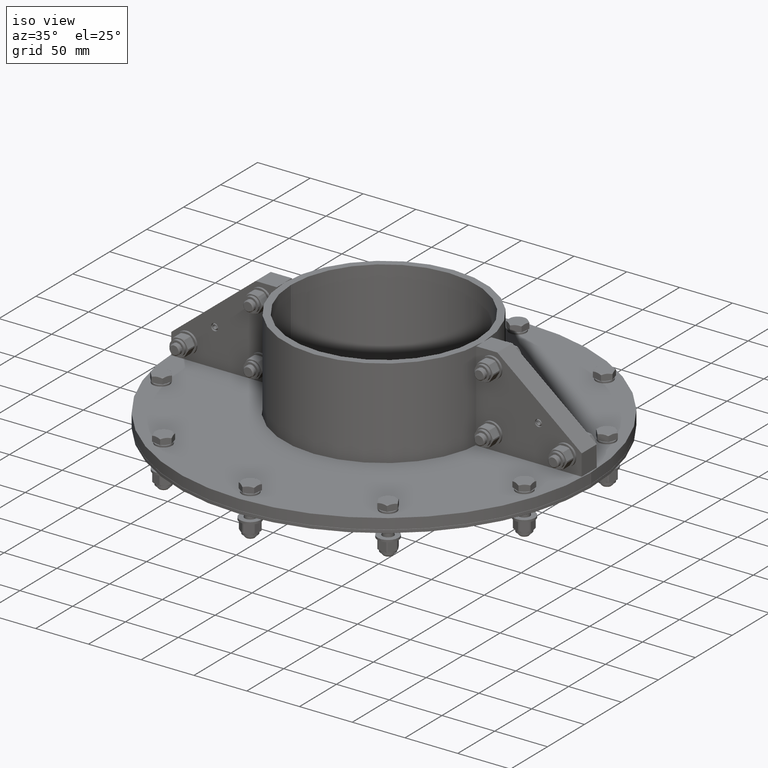
[diagram: clean part render]
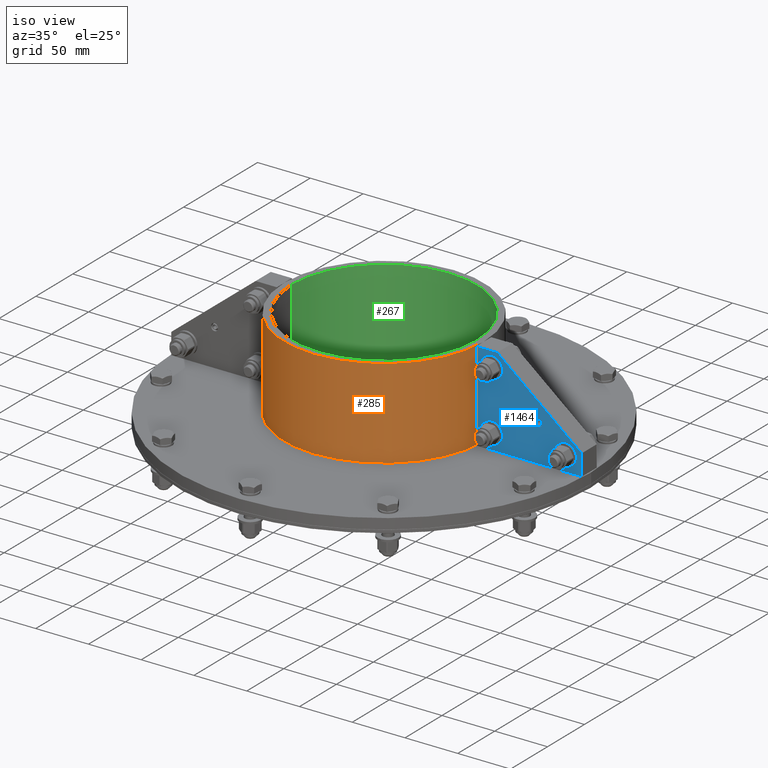
[diagram: same view with three faces highlighted in distinct colors, each labeled with its STEP entity id]
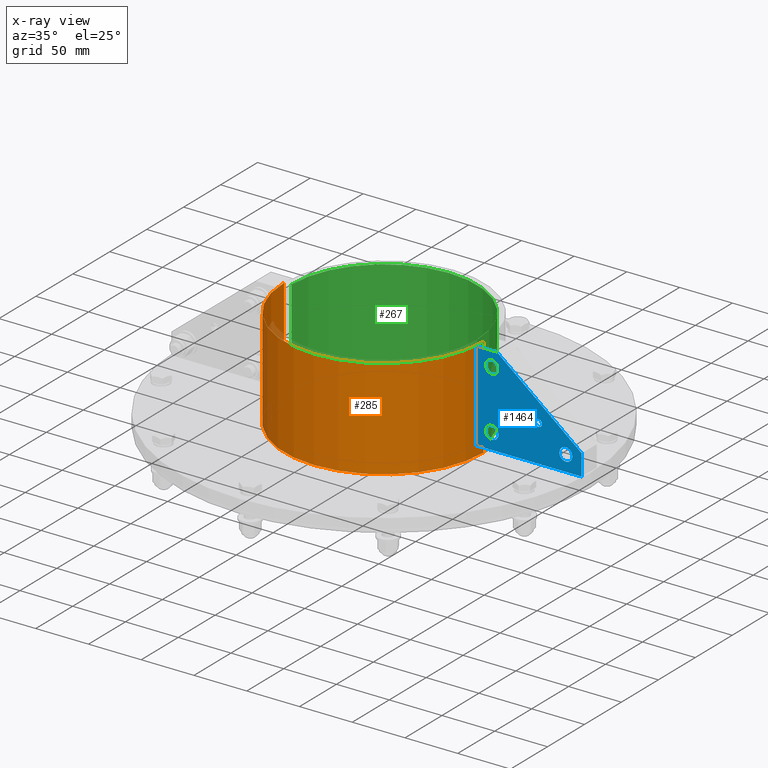
[diagram: x-ray of the same camera — body ghosted, the three highlighted faces saturated]
A machine part, iso view with three faces highlighted in distinct colors.
The next image is the same camera in x-ray (body ghosted, the three faces saturated) — at least one of them is partly hidden behind the body in this view.
Their STEP definitions:

[orange] entity #285 — the highlighted cylindrical surface (partial cylindrical patch) has radius 94.5 mm, axis along (0, 0, 1).
#151=CARTESIAN_POINT('',(94.499788359551374,0.2,95.0));
#152=VERTEX_POINT('',#151);
#153=CARTESIAN_POINT('',(94.499788359551374,0.2,0.0));
#154=VERTEX_POINT('',#153);
#155=CARTESIAN_POINT('',(94.499788359551374,0.2,95.0));
#156=DIRECTION('',(0.0,0.0,-1.0));
#157=VECTOR('',#156,95.0);
#158=LINE('',#155,#157);
#159=EDGE_CURVE('',#152,#154,#158,.T.);
#191=CARTESIAN_POINT('',(-94.499788359551374,0.2,0.0));
#192=VERTEX_POINT('',#191);
#193=CARTESIAN_POINT('',(-94.499788359551374,0.2,95.0));
#194=VERTEX_POINT('',#193);
#195=CARTESIAN_POINT('',(-94.499788359551374,0.2,0.0));
#196=DIRECTION('',(0.0,0.0,1.0));
#197=VECTOR('',#196,95.0);
#198=LINE('',#195,#197);
#199=EDGE_CURVE('',#192,#194,#198,.T.);
#232=CARTESIAN_POINT('',(0.0,0.0,0.0));
#233=DIRECTION('',(0.0,0.0,-1.0));
#234=DIRECTION('',(-1.0,0.0,0.0));
#235=AXIS2_PLACEMENT_3D('',#232,#233,#234);
#236=CIRCLE('',#235,94.500000000000014);
#237=EDGE_CURVE('',#192,#154,#236,.T.);
#268=CARTESIAN_POINT('',(0.0,0.0,0.0));
#269=DIRECTION('',(0.0,0.0,1.0));
#270=DIRECTION('',(-1.0,0.0,0.0));
#271=AXIS2_PLACEMENT_3D('',#268,#269,#270);
#272=CYLINDRICAL_SURFACE('',#271,94.500000000000014);
#273=ORIENTED_EDGE('',*,*,#199,.T.);
#274=CARTESIAN_POINT('',(0.0,0.0,95.0));
#275=DIRECTION('',(0.0,0.0,-1.0));
#276=DIRECTION('',(-1.0,0.0,0.0));
#277=AXIS2_PLACEMENT_3D('',#274,#275,#276);
#278=CIRCLE('',#277,94.500000000000014);
#279=EDGE_CURVE('',#194,#152,#278,.T.);
#280=ORIENTED_EDGE('',*,*,#279,.T.);
#281=ORIENTED_EDGE('',*,*,#159,.T.);
#282=ORIENTED_EDGE('',*,*,#237,.F.);
#283=EDGE_LOOP('',(#273,#280,#281,#282));
#284=FACE_OUTER_BOUND('',#283,.T.);
#285=ADVANCED_FACE('',(#284),#272,.T.);

[blue] entity #1464 — the highlighted planar face has unit normal (0, -1, 0).
#1164=CARTESIAN_POINT('',(21.150000000000002,71.0,5.0));
#1165=VERTEX_POINT('',#1164);
#1166=CARTESIAN_POINT('',(15.0,71.0,5.0));
#1167=DIRECTION('',(0.0,0.0,-1.0));
#1168=DIRECTION('',(-1.0,0.0,0.0));
#1169=AXIS2_PLACEMENT_3D('',#1166,#1167,#1168);
#1170=CIRCLE('',#1169,6.150000000000001);
#1171=EDGE_CURVE('',#1165,#1165,#1170,.T.);
#1192=CARTESIAN_POINT('',(91.150000000000006,15.000000000000002,5.0));
#1193=VERTEX_POINT('',#1192);
#1194=CARTESIAN_POINT('',(85.0,15.000000000000002,5.0));
#1195=DIRECTION('',(0.0,0.0,-1.0));
#1196=DIRECTION('',(-1.0,0.0,0.0));
#1197=AXIS2_PLACEMENT_3D('',#1194,#1195,#1196);
#1198=CIRCLE('',#1197,6.150000000000001);
#1199=EDGE_CURVE('',#1193,#1193,#1198,.T.);
#1220=CARTESIAN_POINT('',(21.150000000000002,15.000000000000002,5.0));
#1221=VERTEX_POINT('',#1220);
#1222=CARTESIAN_POINT('',(15.0,15.000000000000002,5.0));
#1223=DIRECTION('',(0.0,0.0,-1.0));
#1224=DIRECTION('',(-1.0,0.0,0.0));
#1225=AXIS2_PLACEMENT_3D('',#1222,#1223,#1224);
#1226=CIRCLE('',#1225,6.150000000000001);
#1227=EDGE_CURVE('',#1221,#1221,#1226,.T.);
#1248=CARTESIAN_POINT('',(62.350000000000001,35.0,5.0));
#1249=VERTEX_POINT('',#1248);
#1250=CARTESIAN_POINT('',(59.0,35.0,5.0));
#1251=DIRECTION('',(0.0,0.0,-1.0));
#1252=DIRECTION('',(-1.0,0.0,0.0));
#1253=AXIS2_PLACEMENT_3D('',#1250,#1251,#1252);
#1254=CIRCLE('',#1253,3.35);
#1255=EDGE_CURVE('',#1249,#1249,#1254,.T.);
#1325=CARTESIAN_POINT('',(0.0,85.0,5.0));
#1326=VERTEX_POINT('',#1325);
#1327=CARTESIAN_POINT('',(20.0,85.0,5.0));
#1328=VERTEX_POINT('',#1327);
#1329=CARTESIAN_POINT('',(0.0,85.0,5.0));
#1330=DIRECTION('',(1.0,0.0,0.0));
#1331=VECTOR('',#1330,20.0);
#1332=LINE('',#1329,#1331);
#1333=EDGE_CURVE('',#1326,#1328,#1332,.T.);
#1356=CARTESIAN_POINT('',(100.0,20.000000000000018,5.0));
#1357=VERTEX_POINT('',#1356);
#1358=CARTESIAN_POINT('',(20.0,85.0,5.0));
#1359=DIRECTION('',(0.776114000116266,-0.630592625094466,0.0));
#1360=VECTOR('',#1359,103.0776406404415);
#1361=LINE('',#1358,#1360);
#1362=EDGE_CURVE('',#1328,#1357,#1361,.T.);
#1380=CARTESIAN_POINT('',(100.0,1.836970E-014,5.0));
#1381=VERTEX_POINT('',#1380);
#1382=CARTESIAN_POINT('',(100.0,20.000000000000018,5.0));
#1383=DIRECTION('',(0.0,-1.0,0.0));
#1384=VECTOR('',#1383,20.0);
#1385=LINE('',#1382,#1384);
#1386=EDGE_CURVE('',#1357,#1381,#1385,.T.);
#1404=CARTESIAN_POINT('',(0.0,0.0,5.0));
#1405=VERTEX_POINT('',#1404);
#1406=CARTESIAN_POINT('',(100.0,1.836970E-014,5.0));
#1407=DIRECTION('',(-1.0,0.0,0.0));
#1408=VECTOR('',#1407,100.0);
#1409=LINE('',#1406,#1408);
#1410=EDGE_CURVE('',#1381,#1405,#1409,.T.);
#1428=CARTESIAN_POINT('',(0.0,0.0,5.0));
#1429=DIRECTION('',(0.0,1.0,0.0));
#1430=VECTOR('',#1429,85.0);
#1431=LINE('',#1428,#1430);
#1432=EDGE_CURVE('',#1405,#1326,#1431,.T.);
#1440=CARTESIAN_POINT('',(40.797228400869528,33.297228400869542,5.0));
#1441=DIRECTION('',(0.0,0.0,1.0));
#1442=DIRECTION('',(1.0,0.0,0.0));
#1443=AXIS2_PLACEMENT_3D('',#1440,#1441,#1442);
#1444=PLANE('',#1443);
#1445=ORIENTED_EDGE('',*,*,#1333,.F.);
#1446=ORIENTED_EDGE('',*,*,#1432,.F.);
#1447=ORIENTED_EDGE('',*,*,#1410,.F.);
#1448=ORIENTED_EDGE('',*,*,#1386,.F.);
#1449=ORIENTED_EDGE('',*,*,#1362,.F.);
#1450=EDGE_LOOP('',(#1445,#1446,#1447,#1448,#1449));
#1451=FACE_OUTER_BOUND('',#1450,.T.);
#1452=ORIENTED_EDGE('',*,*,#1171,.T.);
#1453=EDGE_LOOP('',(#1452));
#1454=FACE_BOUND('',#1453,.T.);
#1455=ORIENTED_EDGE('',*,*,#1199,.T.);
#1456=EDGE_LOOP('',(#1455));
#1457=FACE_BOUND('',#1456,.T.);
#1458=ORIENTED_EDGE('',*,*,#1227,.T.);
#1459=EDGE_LOOP('',(#1458));
#1460=FACE_BOUND('',#1459,.T.);
#1461=ORIENTED_EDGE('',*,*,#1255,.T.);
#1462=EDGE_LOOP('',(#1461));
#1463=FACE_BOUND('',#1462,.T.);
#1464=ADVANCED_FACE('',(#1451,#1454,#1457,#1460,#1463),#1444,.T.);

[green] entity #267 — the highlighted cylindrical surface (partial cylindrical patch) has radius 88 mm, axis along (-0, -0, 1).
#161=CARTESIAN_POINT('',(87.999772726979245,0.2,95.0));
#162=VERTEX_POINT('',#161);
#169=CARTESIAN_POINT('',(87.999772726979245,0.2,0.0));
#170=VERTEX_POINT('',#169);
#171=CARTESIAN_POINT('',(87.999772726979245,0.2,0.0));
#172=DIRECTION('',(0.0,0.0,1.0));
#173=VECTOR('',#172,95.0);
#174=LINE('',#171,#173);
#175=EDGE_CURVE('',#170,#162,#174,.T.);
#201=CARTESIAN_POINT('',(-87.999772726979245,0.2,0.0));
#202=VERTEX_POINT('',#201);
#209=CARTESIAN_POINT('',(-87.999772726979245,0.2,95.0));
#210=VERTEX_POINT('',#209);
#211=CARTESIAN_POINT('',(-87.999772726979245,0.2,95.0));
#212=DIRECTION('',(0.0,0.0,-1.0));
#213=VECTOR('',#212,95.0);
#214=LINE('',#211,#213);
#215=EDGE_CURVE('',#210,#202,#214,.T.);
#240=CARTESIAN_POINT('',(0.0,0.0,0.0));
#241=DIRECTION('',(0.0,0.0,1.0));
#242=DIRECTION('',(-1.0,0.0,0.0));
#243=AXIS2_PLACEMENT_3D('',#240,#241,#242);
#244=CIRCLE('',#243,88.0);
#245=EDGE_CURVE('',#170,#202,#244,.T.);
#250=CARTESIAN_POINT('',(0.0,0.0,0.0));
#251=DIRECTION('',(0.0,0.0,1.0));
#252=DIRECTION('',(-1.0,0.0,0.0));
#253=AXIS2_PLACEMENT_3D('',#250,#251,#252);
#254=CYLINDRICAL_SURFACE('',#253,88.0);
#255=ORIENTED_EDGE('',*,*,#215,.T.);
#256=ORIENTED_EDGE('',*,*,#245,.F.);
#257=ORIENTED_EDGE('',*,*,#175,.T.);
#258=CARTESIAN_POINT('',(0.0,0.0,95.0));
#259=DIRECTION('',(0.0,0.0,-1.0));
#260=DIRECTION('',(-1.0,0.0,0.0));
#261=AXIS2_PLACEMENT_3D('',#258,#259,#260);
#262=CIRCLE('',#261,88.0);
#263=EDGE_CURVE('',#210,#162,#262,.T.);
#264=ORIENTED_EDGE('',*,*,#263,.F.);
#265=EDGE_LOOP('',(#255,#256,#257,#264));
#266=FACE_OUTER_BOUND('',#265,.T.);
#267=ADVANCED_FACE('',(#266),#254,.F.);